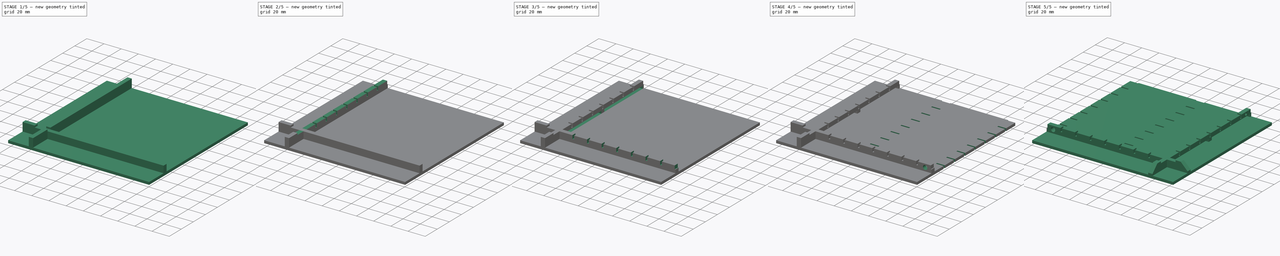
[diagram: build sequence overview — one tinted view per stage of 5, left to right]
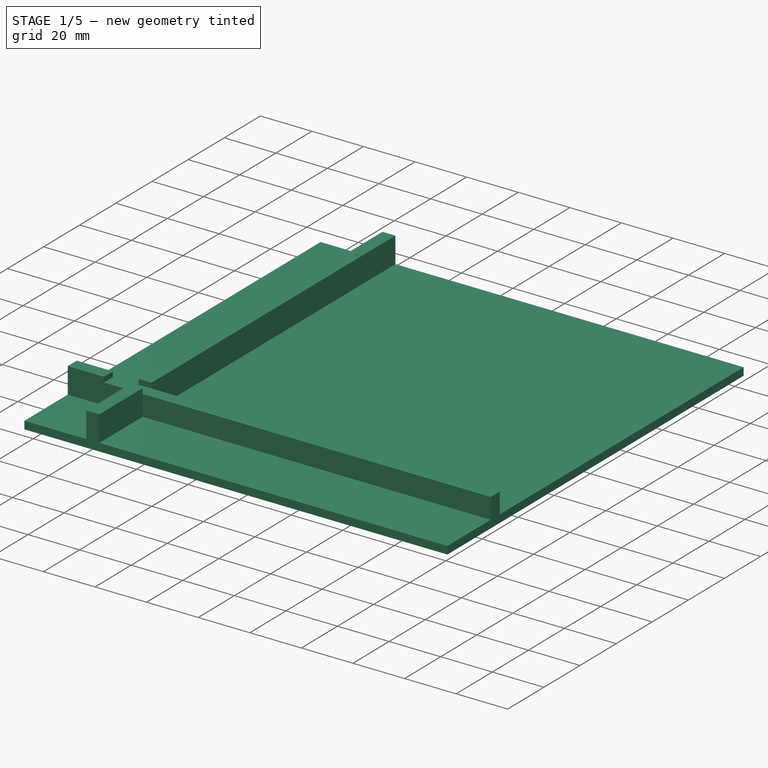
[diagram: stage 1 of 5 — iso view after this stage's code; geometry added in this stage tinted green]
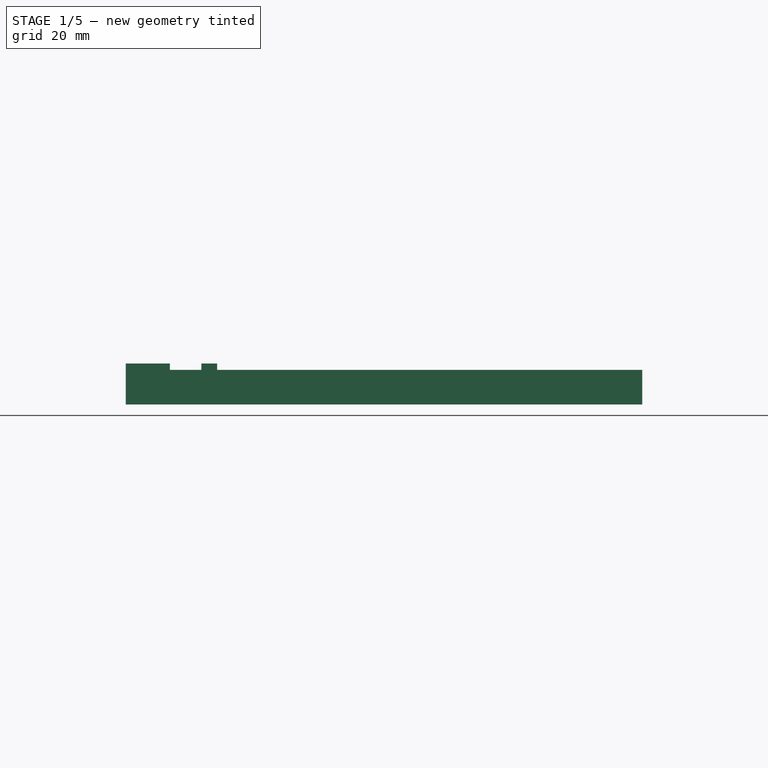
[diagram: stage 1 of 5 — front view after this stage's code; geometry added in this stage tinted green]
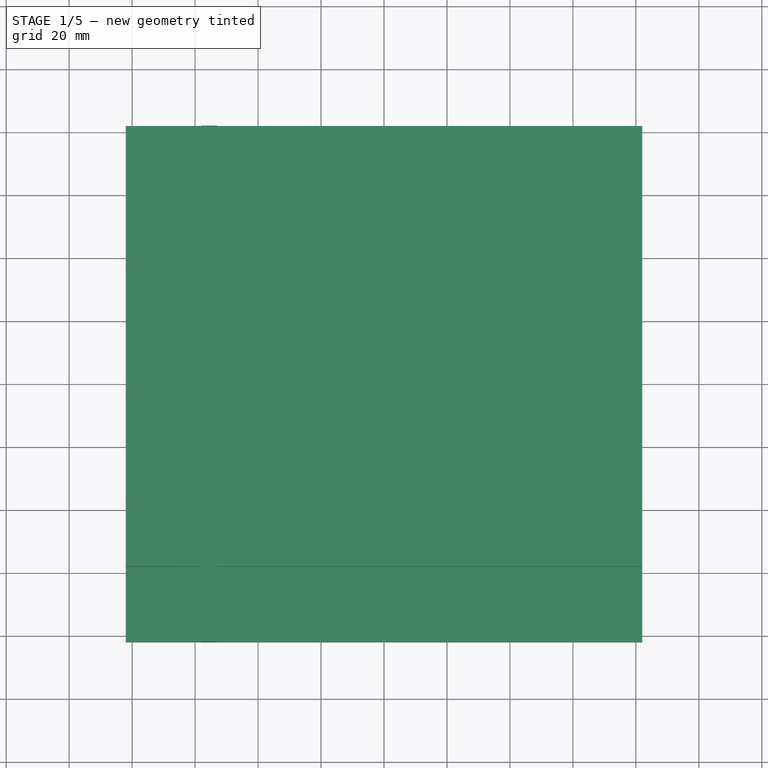
[diagram: stage 1 of 5 — top view after this stage's code; geometry added in this stage tinted green]
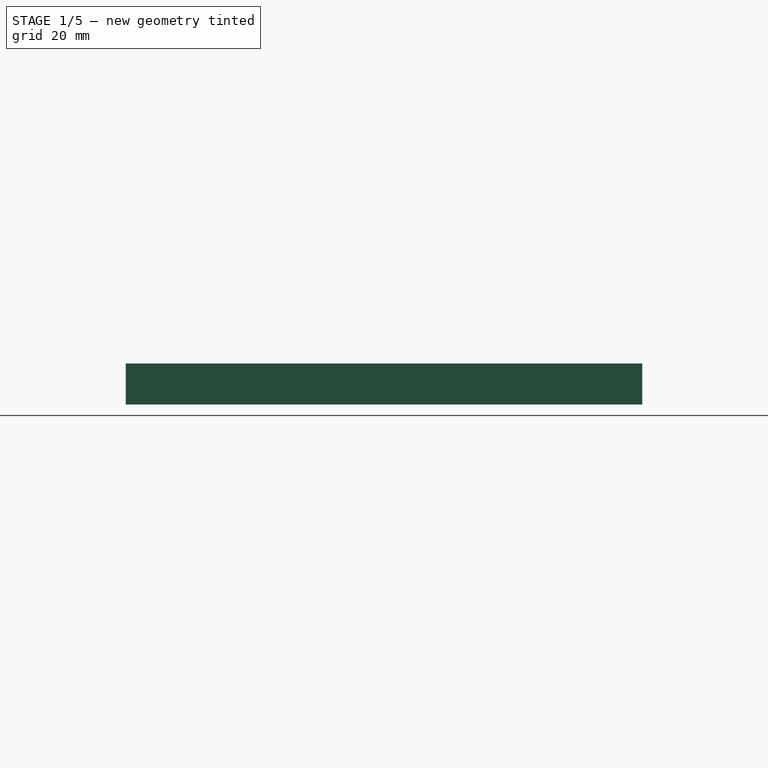
[diagram: stage 1 of 5 — right view after this stage's code; geometry added in this stage tinted green]
FCSTD DOCUMENT  (FreeCAD 2024.317R38972 (Git))
Label: frame_plate_left_bottom_rt_flat
License: All rights reserved
LicenseURL: http://en.wikipedia.org/wiki/All_rights_reserved
objects: Sketcher::SketchObject×10, PartDesign::Pocket×8, PartDesign::LinearPattern×4, PartDesign::Pad×2, PartDesign::MultiTransform×1, PartDesign::Chamfer×1, PartDesign::Body×1, Part::Mirroring×1
note: 70 computed .brp shape members not serialized (recipe doc carries the construction recipe); baked Part::Feature solids carry a one-line shape summary decoded from their .brp

FEATURE [Sketcher::SketchObject] Sketch  label="LB-plate"
  ArcFitTolerance = 0
  AttachmentSupport = -> [XY_Plane]
  ExternalBSplineMaxDegree = 0
  ExternalBSplineTolerance = 0
  FullyConstrained = true
  InternalTolerance = 1e-06
  InvalidShape = false
  MakeInternals = false
  MapMode = 5
  Support = -> [XY_Plane]
  TreeRank = 0
  ValidateShape = false
  sketch-geometry (4):
    g0: LineSegment StartX=-82 StartY=82 StartZ=0 EndX=82 EndY=82 EndZ=0
    g1: LineSegment StartX=82 StartY=82 StartZ=0 EndX=82 EndY=-82 EndZ=0
    g2: LineSegment StartX=82 StartY=-82 StartZ=0 EndX=-82 EndY=-82 EndZ=0
    g3: LineSegment StartX=-82 StartY=-82 StartZ=0 EndX=-82 EndY=82 EndZ=0
  constraints (10):
    c: Coincident(g0,g1)
    c: Coincident(g1,g2)
    c: Coincident(g2,g3)
    c: Coincident(g3,g0)
    c: Horizontal(g2)
    c: Vertical(g3)
    c: DistanceX(g2,g1) = 164
    c: DistanceY(g2,g0) = 164
    c: Symmetric(g1,g0,g-1)
    c: Symmetric(g0,g0,g-2)
FEATURE [PartDesign::Pad] Pad
  AddSubType = 0
  AlongSketchNormal = false
  AutoTaperInnerAngle = true
  CheckUpToFaceLimits = true
  ClaimChildren = false
  Direction = (0,0,1)
  Fit = 0
  FitJoin = 0
  InnerFit = 0
  InnerFitJoin = 0
  InvalidShape = false
  Length = 3
  Length2 = 10
  NewSolid = false
  Profile = -> Sketch
  ReferenceAxis = -> Sketch [N_Axis]
  Suppress = false
  TaperInnerAngle = 0
  TaperInnerAngleRev = 0
  TreeRank = 0
  Type = 0
  ValidateShape = true
  _ProfileBasedVersion = 0
FEATURE [Sketcher::SketchObject] Sketch001  label="LB-bounds"
  ArcFitTolerance = 0
  AttachmentSupport = -> [Pad]
  ExternalBSplineMaxDegree = 0
  ExternalBSplineTolerance = 0
  FullyConstrained = true
  InternalTolerance = 1e-06
  InvalidShape = false
  MakeInternals = false
  MapMode = 5
  Placement = pos=(0,0,3) rot=(0,0,1;0rad)
  Support = -> [Pad]
  TreeRank = 0
  ValidateShape = false
  sketch-geometry (8):
    g0: LineSegment StartX=-82 StartY=-53 StartZ=0 EndX=82 EndY=-53 EndZ=0
    g1: LineSegment StartX=82 StartY=-53 StartZ=0 EndX=82 EndY=-58 EndZ=0
    g2: LineSegment StartX=82 StartY=-58 StartZ=0 EndX=-82 EndY=-58 EndZ=0
    g3: LineSegment StartX=-82 StartY=-58 StartZ=0 EndX=-82 EndY=-53 EndZ=0
    g4: LineSegment StartX=-53 StartY=82 StartZ=0 EndX=-58 EndY=82 EndZ=0
    g5: LineSegment StartX=-58 StartY=82 StartZ=0 EndX=-58 EndY=-82 EndZ=0
    g6: LineSegment StartX=-58 StartY=-82 StartZ=0 EndX=-53 EndY=-82 EndZ=0
    g7: LineSegment StartX=-53 StartY=-82 StartZ=0 EndX=-53 EndY=82 EndZ=0
  constraints (24):
    c: Coincident(g0,g1)
    c: Coincident(g1,g2)
    c: Coincident(g2,g3)
    c: Coincident(g3,g0)
    c: Horizontal(g0)
    c: Horizontal(g2)
    c: Vertical(g1)
    c: Vertical(g3)
    c: DistanceY(g2,g0) = 5
    c: Coincident(g4,g5)
    c: Coincident(g5,g6)
    c: Coincident(g6,g7)
    c: Coincident(g7,g4)
    c: Horizontal(g4)
    c: Horizontal(g6)
    c: Vertical(g5)
    c: Vertical(g7)
    c: DistanceX(g5,g6) = 5
    c: DistanceX(g2,g6) = 29
    c: DistanceY(g5,g0) = 29
    c: DistanceY(g0,g-1) = 53
    c: DistanceX(g6,g-1) = 53
    c: DistanceX(g2,g1) = 164
    c: DistanceY(g5,g4) = 164
FEATURE [PartDesign::Pad] Pad001
  AddSubType = 0
  AutoTaperInnerAngle = true
  BaseFeature = -> Pad
  CheckUpToFaceLimits = true
  ClaimChildren = false
  Direction = (0,0,1)
  Fit = 0
  FitJoin = 0
  InnerFit = 0
  InnerFitJoin = 0
  InvalidShape = false
  Length = 10
  Length2 = 10
  NewSolid = false
  Profile = -> Sketch001
  ReferenceAxis = -> Sketch001 [N_Axis]
  Suppress = false
  TaperInnerAngle = 0
  TaperInnerAngleRev = 0
  TreeRank = 0
  Type = 0
  ValidateShape = true
  _ProfileBasedVersion = 0
FEATURE [Sketcher::SketchObject] Sketch005  label="LB-H-plex-cutout"
  ArcFitTolerance = 0
  ExternalBSplineMaxDegree = 0
  ExternalBSplineTolerance = 0
  ExternalGeometry = -> [Pad001]
  FullyConstrained = true
  InternalTolerance = 1e-06
  InvalidShape = false
  MakeInternals = false
  MapMode = 5
  Placement = pos=(0,-53,0) rot=(0,0.707107,0.707107;3.14159rad)
  TreeRank = 0
  ValidateShape = false
  sketch-geometry (4):
    g0: LineSegment StartX=-82 StartY=13 StartZ=0 EndX=68 EndY=13 EndZ=0
    g1: LineSegment StartX=68 StartY=13 StartZ=0 EndX=68 EndY=11 EndZ=0
    g2: LineSegment StartX=68 StartY=11 StartZ=0 EndX=-82 EndY=11 EndZ=0
    g3: LineSegment StartX=-82 StartY=11 StartZ=0 EndX=-82 EndY=13 EndZ=0
  constraints (12):
    c: Coincident(g0,g1)
    c: Coincident(g1,g2)
    c: Coincident(g2,g3)
    c: Coincident(g3,g0)
    c: Horizontal(g0)
    c: Horizontal(g2)
    c: Vertical(g1)
    c: Vertical(g3)
    c: DistanceY(g1,g0) = 2
    c: DistanceX(g1,g-3) = 14
    c: PointOnObject(g2,g-5)
    c: PointOnObject(g0,g-6)
FEATURE [PartDesign::Pocket] Pocket
  AddSubType = 1
  AlongSketchNormal = false
  AutoTaperInnerAngle = true
  BaseFeature = -> Pad001
  CheckUpToFaceLimits = true
  ClaimChildren = false
  Direction = (-1e-16,-1,2e-16)
  Fit = 0
  FitJoin = 0
  InnerFit = 0
  InnerFitJoin = 0
  InvalidShape = false
  Length = 5
  Length2 = 10
  Linearize = true
  NewSolid = false
  Profile = -> Sketch005
  ReferenceAxis = -> Sketch005 [N_Axis]
  Suppress = false
  TaperInnerAngle = 0
  TaperInnerAngleRev = 0
  TreeRank = 1
  Type = 0
  ValidateShape = true
  _ProfileBasedVersion = 1
  _Version = 1
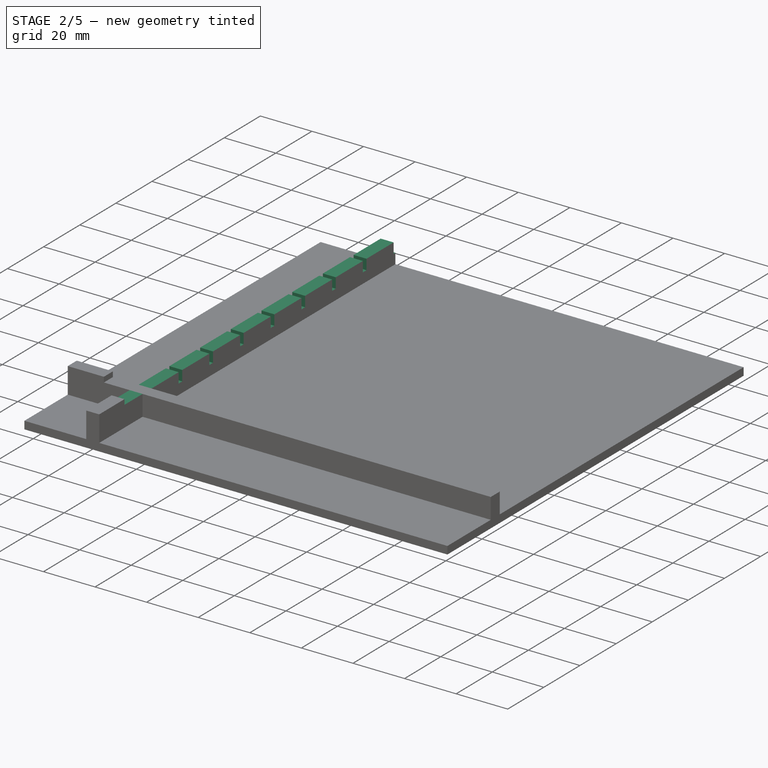
[diagram: stage 2 of 5 — iso view after this stage's code; geometry added in this stage tinted green]
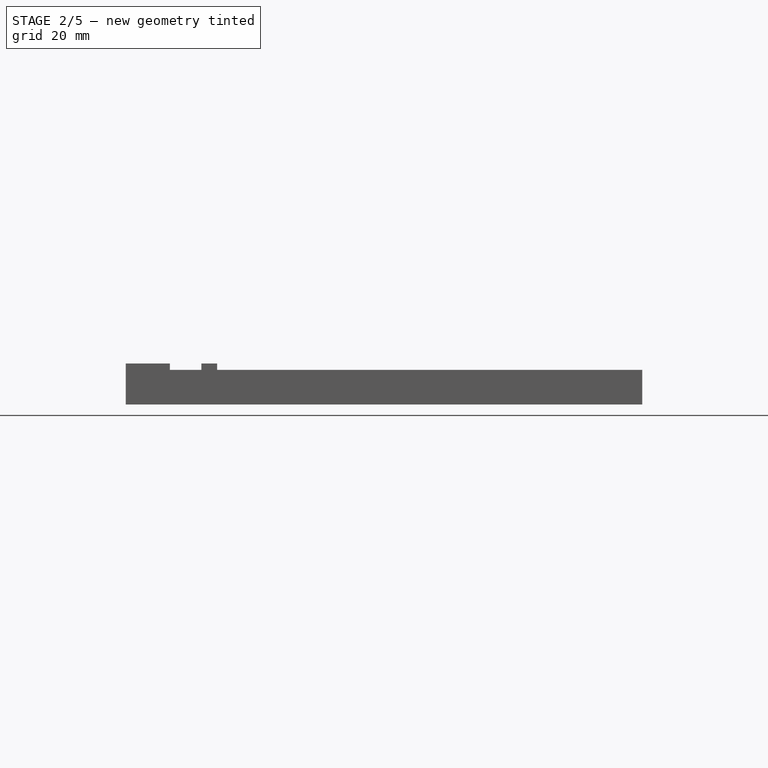
[diagram: stage 2 of 5 — front view after this stage's code; geometry added in this stage tinted green]
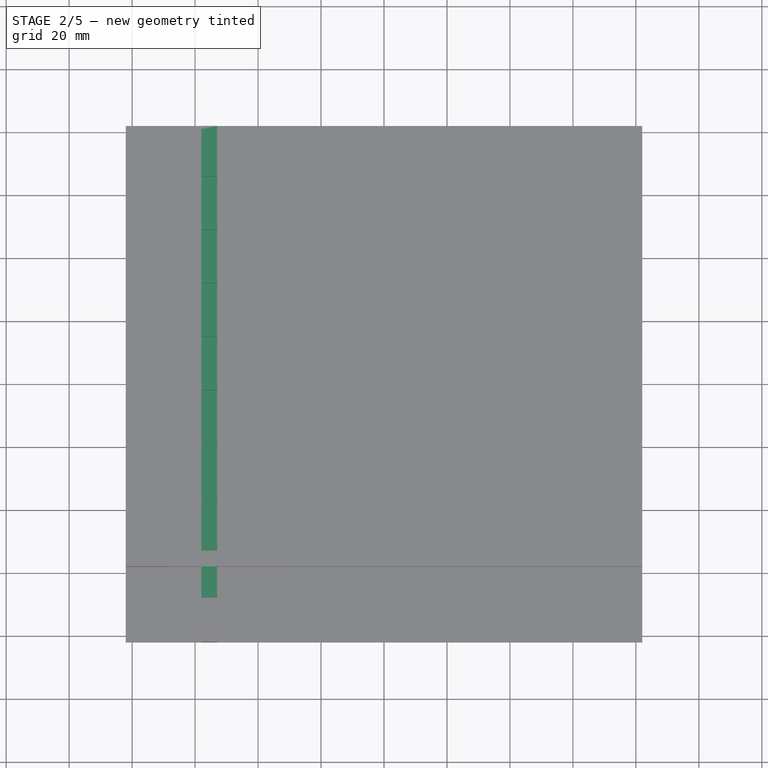
[diagram: stage 2 of 5 — top view after this stage's code; geometry added in this stage tinted green]
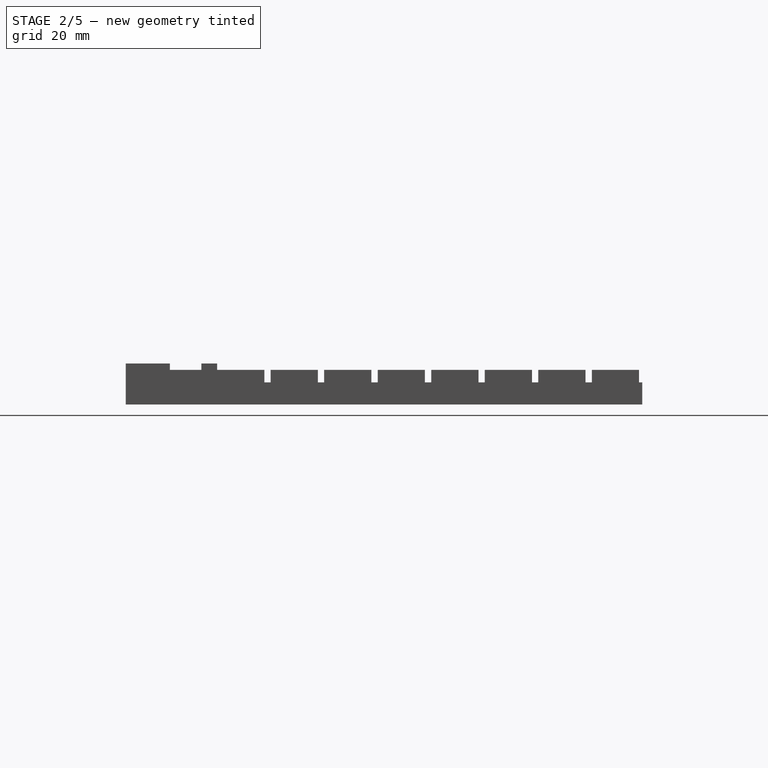
[diagram: stage 2 of 5 — right view after this stage's code; geometry added in this stage tinted green]
FEATURE [Sketcher::SketchObject] Sketch006  label="LB-V-plex-cutout"
  ArcFitTolerance = 1e-06
  AttachmentSupport = -> [Pocket]
  ExternalBSplineMaxDegree = 5
  ExternalBSplineTolerance = 0.0001
  ExternalGeometry = -> [Pocket]
  FullyConstrained = true
  InternalTolerance = 1e-06
  InvalidShape = false
  MakeInternals = false
  MapMode = 5
  Placement = pos=(-53,0,0) rot=(0.57735,0.57735,0.57735;2.0944rad)
  Support = -> [Pocket]
  TreeRank = 2
  ValidateShape = false
  sketch-geometry (4):
    g0: LineSegment StartX=-68 StartY=13 StartZ=0 EndX=82 EndY=13 EndZ=0
    g1: LineSegment StartX=82 StartY=13 StartZ=0 EndX=82 EndY=11 EndZ=0
    g2: LineSegment StartX=82 StartY=11 StartZ=0 EndX=-68 EndY=11 EndZ=0
    g3: LineSegment StartX=-68 StartY=11 StartZ=0 EndX=-68 EndY=13 EndZ=0
  constraints (11):
    c: Coincident(g0,g1)
    c: Coincident(g1,g2)
    c: Coincident(g2,g3)
    c: Coincident(g3,g0)
    c: Horizontal(g0)
    c: Horizontal(g2)
    c: Vertical(g1)
    c: Vertical(g3)
    c: DistanceY(g2,g0) = 2
    c: Coincident(g0,g-3)
    c: DistanceX(g-4,g0) = 14
FEATURE [PartDesign::Pocket] Pocket001
  AddSubType = 1
  AlongSketchNormal = false
  AutoTaperInnerAngle = true
  BaseFeature = -> Pocket
  CheckUpToFaceLimits = true
  ClaimChildren = false
  Direction = (-1,0,0)
  Fit = 0
  FitJoin = 0
  InnerFit = 0
  InnerFitJoin = 0
  InvalidShape = false
  Length = 5
  Length2 = 10
  Linearize = true
  NewSolid = false
  Profile = -> Sketch006
  ReferenceAxis = -> Sketch006 [N_Axis]
  Suppress = false
  TaperInnerAngle = 0
  TaperInnerAngleRev = 0
  TreeRank = 3
  Type = 0
  ValidateShape = true
  _ProfileBasedVersion = 1
  _Version = 1
FEATURE [Sketcher::SketchObject] Sketch007  label="LB-V-crisscross-cutout"
  ArcFitTolerance = 1e-06
  AttachmentSupport = -> [Pocket001]
  ExternalBSplineMaxDegree = 5
  ExternalBSplineTolerance = 0.0001
  ExternalGeometry = -> [Pocket001]
  FullyConstrained = true
  InternalTolerance = 1e-06
  InvalidShape = false
  MakeInternals = false
  MapMode = 5
  Placement = pos=(-53,0,0) rot=(0.57735,0.57735,0.57735;2.0944rad)
  Support = -> [Pocket001]
  TreeRank = 4
  ValidateShape = false
  sketch-geometry (4):
    g0: LineSegment StartX=-38 StartY=11 StartZ=0 EndX=-36 EndY=11 EndZ=0
    g1: LineSegment StartX=-36 StartY=11 StartZ=0 EndX=-36 EndY=7 EndZ=0
    g2: LineSegment StartX=-36 StartY=7 StartZ=0 EndX=-38 EndY=7 EndZ=0
    g3: LineSegment StartX=-38 StartY=7 StartZ=0 EndX=-38 EndY=11 EndZ=0
  constraints (12):
    c: Coincident(g0,g1)
    c: Coincident(g1,g2)
    c: Coincident(g2,g3)
    c: Coincident(g3,g0)
    c: Horizontal(g0)
    c: Horizontal(g2)
    c: Vertical(g1)
    c: Vertical(g3)
    c: DistanceX(g0,g0) = 2
    c: DistanceY(g2,g0) = 4
    c: DistanceX(g-3,g0) = 15
    c: PointOnObject(g0,g-4)
FEATURE [PartDesign::Pocket] Pocket002
  AddSubType = 1
  AlongSketchNormal = false
  AutoTaperInnerAngle = true
  BaseFeature = -> Pocket001
  CheckUpToFaceLimits = true
  ClaimChildren = false
  Direction = (-1,0,0)
  Fit = 0
  FitJoin = 0
  InnerFit = 0
  InnerFitJoin = 0
  InvalidShape = false
  Length = 5
  Length2 = 10
  Linearize = true
  NewSolid = false
  Profile = -> Sketch007
  ReferenceAxis = -> Sketch007 [N_Axis]
  Suppress = false
  TaperInnerAngle = 0
  TaperInnerAngleRev = 0
  TreeRank = 5
  Type = 0
  ValidateShape = true
  _ProfileBasedVersion = 1
  _Version = 1
FEATURE [PartDesign::LinearPattern] LinearPattern
  AddSubType = 0
  BaseFeature = -> Pocket002
  CopyShape = false
  Direction = -> Y_Axis
  InvalidShape = false
  Length = 136
  NewSolid = false
  Occurrences = 9
  OriginalSubs = -> [Pocket002]
  Originals = -> [Pocket002]
  ParallelTransform = true
  SubTransform = true
  Suppress = false
  TreeRank = 6
  ValidateShape = true
  _Version = 3
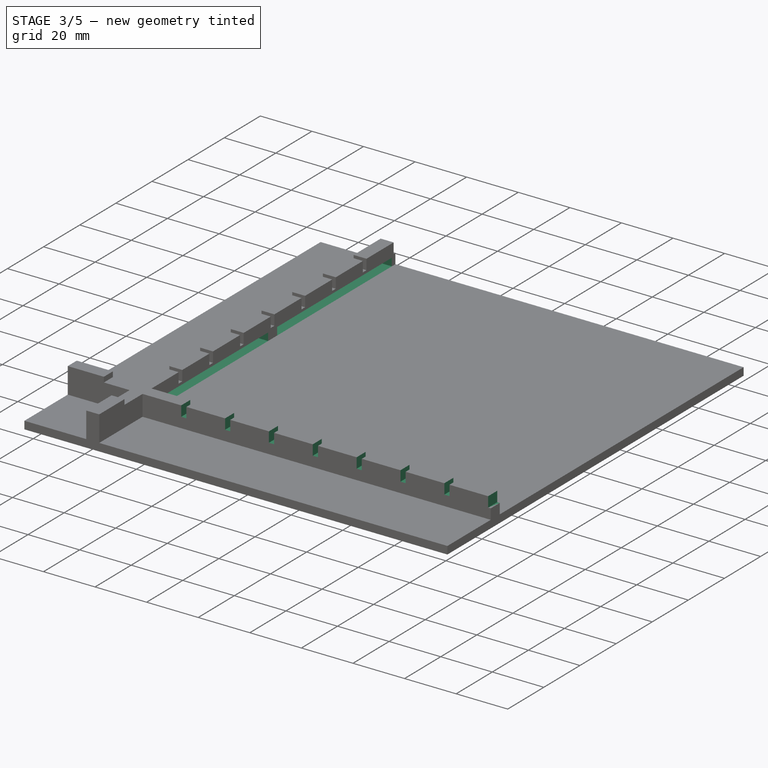
[diagram: stage 3 of 5 — iso view after this stage's code; geometry added in this stage tinted green]
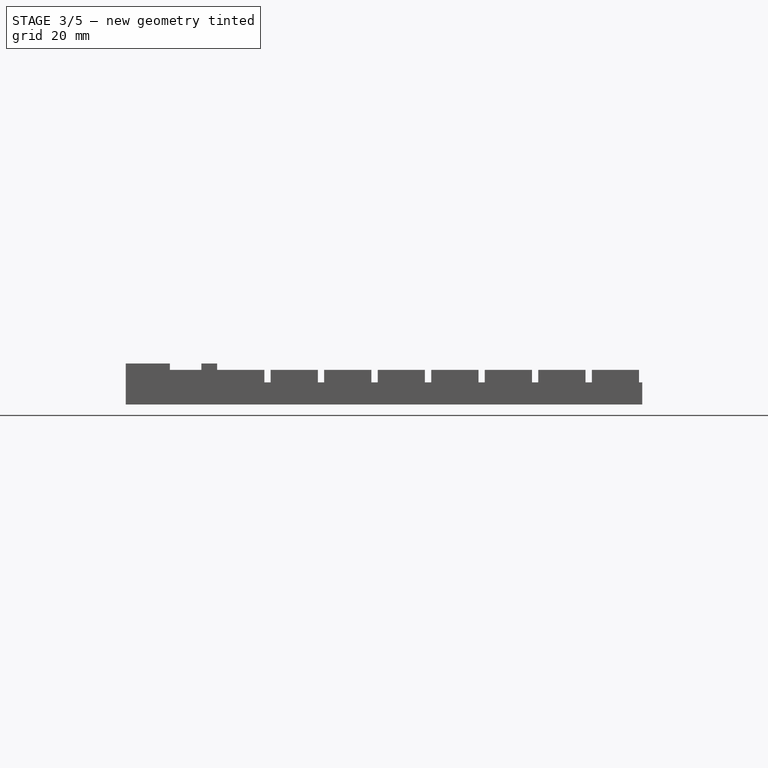
[diagram: stage 3 of 5 — front view after this stage's code; geometry added in this stage tinted green]
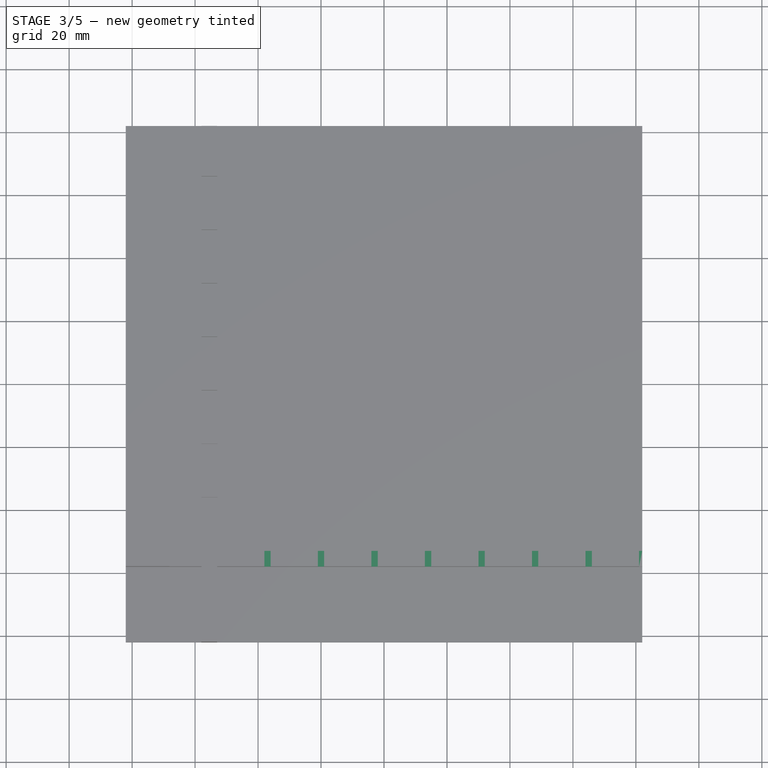
[diagram: stage 3 of 5 — top view after this stage's code; geometry added in this stage tinted green]
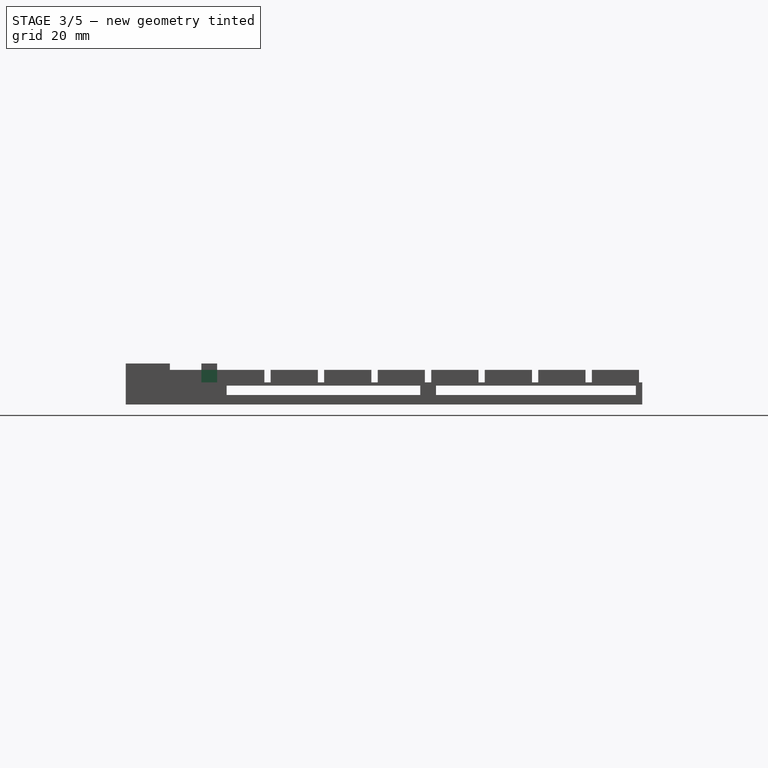
[diagram: stage 3 of 5 — right view after this stage's code; geometry added in this stage tinted green]
FEATURE [Sketcher::SketchObject] Sketch008  label="LB-V-cable-cutout"
  ArcFitTolerance = 1e-06
  AttachmentSupport = -> [LinearPattern]
  ExternalBSplineMaxDegree = 5
  ExternalBSplineTolerance = 0.0001
  ExternalGeometry = -> [LinearPattern]
  FullyConstrained = true
  InternalTolerance = 1e-06
  InvalidShape = false
  MakeInternals = false
  MapMode = 5
  Placement = pos=(-53,0,0) rot=(0.57735,0.57735,0.57735;2.0944rad)
  Support = -> [LinearPattern]
  TreeRank = 7
  ValidateShape = false
  sketch-geometry (8):
    g0: LineSegment StartX=-50 StartY=6 StartZ=0 EndX=11.5 EndY=6 EndZ=0
    g1: LineSegment StartX=11.5 StartY=6 StartZ=0 EndX=11.5 EndY=3 EndZ=0
    g2: LineSegment StartX=11.5 StartY=3 StartZ=0 EndX=-50 EndY=3 EndZ=0
    g3: LineSegment StartX=-50 StartY=3 StartZ=0 EndX=-50 EndY=6 EndZ=0
    g4: LineSegment StartX=16.5 StartY=6 StartZ=0 EndX=80 EndY=6 EndZ=0
    g5: LineSegment StartX=80 StartY=6 StartZ=0 EndX=80 EndY=3 EndZ=0
    g6: LineSegment StartX=80 StartY=3 StartZ=0 EndX=16.5 EndY=3 EndZ=0
    g7: LineSegment StartX=16.5 StartY=3 StartZ=0 EndX=16.5 EndY=6 EndZ=0
  constraints (24):
    c: Coincident(g0,g1)
    c: Coincident(g1,g2)
    c: Coincident(g2,g3)
    c: Coincident(g3,g0)
    c: Horizontal(g0)
    c: Horizontal(g2)
    c: Vertical(g1)
    c: Vertical(g3)
    c: Coincident(g4,g5)
    c: Coincident(g5,g6)
    c: Coincident(g6,g7)
    c: Coincident(g7,g4)
    c: Horizontal(g4)
    c: Horizontal(g6)
    c: Vertical(g5)
    c: Vertical(g7)
    c: DistanceY(g5,g4) = 3
    c: DistanceY(g1,g0) = 3
    c: DistanceX(g5,g-3) = 2
    c: DistanceX(g-4,g2) = 3
    c: DistanceX(g-6,g4) = 1.5
    c: DistanceX(g0,g-5) = 1.5
    c: PointOnObject(g6,g-7)
    c: PointOnObject(g1,g-7)
FEATURE [PartDesign::Pocket] Pocket003
  AddSubType = 1
  AlongSketchNormal = false
  AutoTaperInnerAngle = true
  BaseFeature = -> LinearPattern
  CheckUpToFaceLimits = true
  ClaimChildren = false
  Direction = (-1,0,0)
  Fit = 0
  FitJoin = 0
  InnerFit = 0
  InnerFitJoin = 0
  InvalidShape = false
  Length = 5
  Length2 = 10
  Linearize = true
  NewSolid = false
  Profile = -> Sketch008
  ReferenceAxis = -> Sketch008 [N_Axis]
  Suppress = false
  TaperInnerAngle = 0
  TaperInnerAngleRev = 0
  TreeRank = 8
  Type = 0
  ValidateShape = true
  _ProfileBasedVersion = 1
  _Version = 1
FEATURE [Sketcher::SketchObject] Sketch009  label="LB-H-crisscross-cutout"
  ArcFitTolerance = 1e-06
  AttachmentSupport = -> [Pocket003]
  ExternalBSplineMaxDegree = 5
  ExternalBSplineTolerance = 0.0001
  ExternalGeometry = -> [Pocket003]
  FullyConstrained = true
  InternalTolerance = 1e-06
  InvalidShape = false
  MakeInternals = false
  MapMode = 5
  Placement = pos=(0,-53,0) rot=(0,0.707107,0.707107;3.14159rad)
  Support = -> [Pocket003]
  TreeRank = 9
  ValidateShape = false
  sketch-geometry (4):
    g0: LineSegment StartX=36 StartY=11 StartZ=0 EndX=38 EndY=11 EndZ=0
    g1: LineSegment StartX=38 StartY=11 StartZ=0 EndX=38 EndY=7 EndZ=0
    g2: LineSegment StartX=38 StartY=7 StartZ=0 EndX=36 EndY=7 EndZ=0
    g3: LineSegment StartX=36 StartY=7 StartZ=0 EndX=36 EndY=11 EndZ=0
  constraints (12):
    c: Coincident(g0,g1)
    c: Coincident(g1,g2)
    c: Coincident(g2,g3)
    c: Coincident(g3,g0)
    c: Horizontal(g0)
    c: Horizontal(g2)
    c: Vertical(g1)
    c: Vertical(g3)
    c: DistanceY(g1,g0) = 4
    c: DistanceX(g0,g0) = 2
    c: PointOnObject(g0,g-4)
    c: DistanceX(g0,g-4) = 15
FEATURE [PartDesign::Pocket] Pocket004
  AddSubType = 1
  AlongSketchNormal = false
  AutoTaperInnerAngle = true
  BaseFeature = -> Pocket003
  CheckUpToFaceLimits = true
  ClaimChildren = false
  Direction = (0,-1,2e-16)
  Fit = 0
  FitJoin = 0
  InnerFit = 0
  InnerFitJoin = 0
  InvalidShape = false
  Length = 5
  Length2 = 10
  Linearize = true
  NewSolid = false
  Profile = -> Sketch009
  ReferenceAxis = -> Sketch009 [N_Axis]
  Suppress = false
  TaperInnerAngle = 0
  TaperInnerAngleRev = 0
  TreeRank = 10
  Type = 0
  ValidateShape = true
  _ProfileBasedVersion = 1
  _Version = 1
FEATURE [PartDesign::LinearPattern] LinearPattern001
  AddSubType = 0
  BaseFeature = -> Pocket004
  CopyShape = false
  Direction = -> Sketch009 [H_Axis]
  InvalidShape = false
  Length = 136
  NewSolid = false
  Occurrences = 9
  OriginalSubs = -> [Pocket004]
  Originals = -> [Pocket004]
  ParallelTransform = true
  Reversed = true
  SubTransform = true
  Suppress = false
  TreeRank = 11
  ValidateShape = true
  _Version = 3
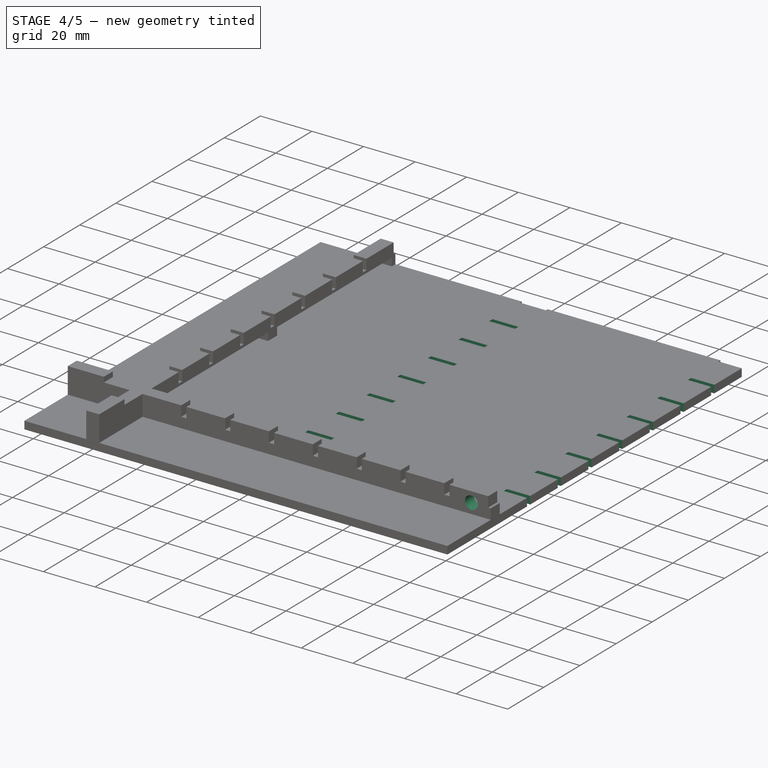
[diagram: stage 4 of 5 — iso view after this stage's code; geometry added in this stage tinted green]
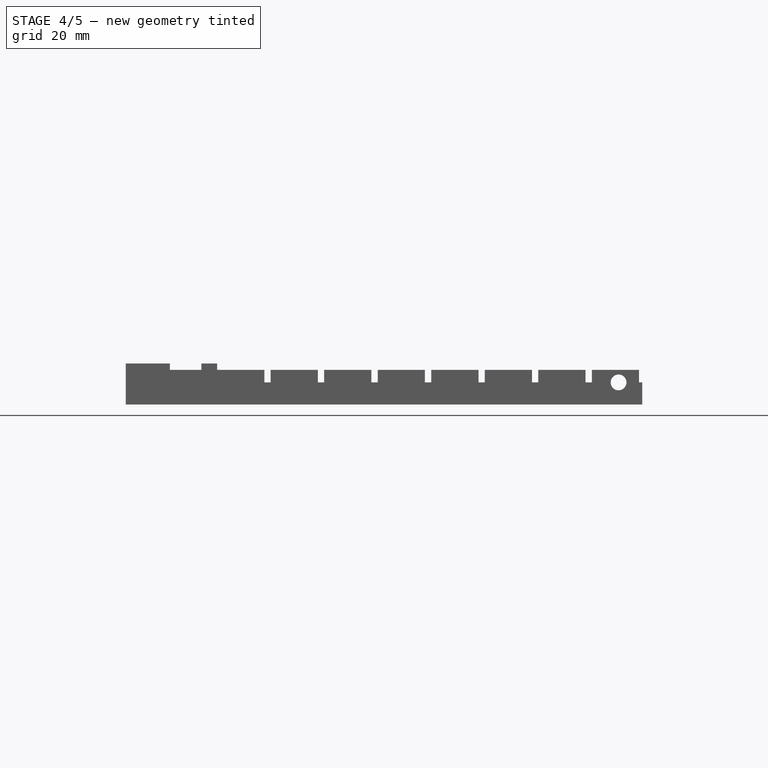
[diagram: stage 4 of 5 — front view after this stage's code; geometry added in this stage tinted green]
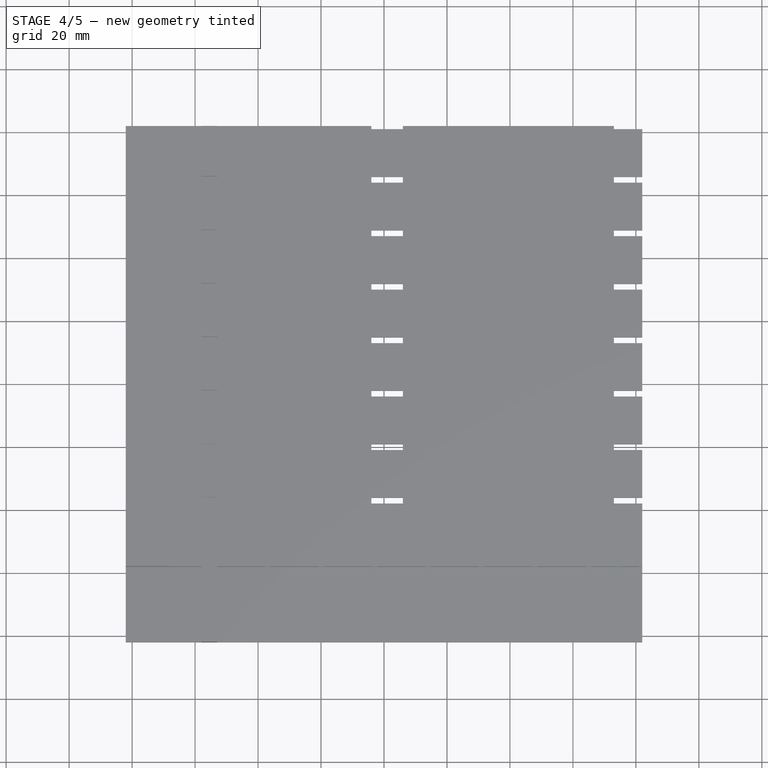
[diagram: stage 4 of 5 — top view after this stage's code; geometry added in this stage tinted green]
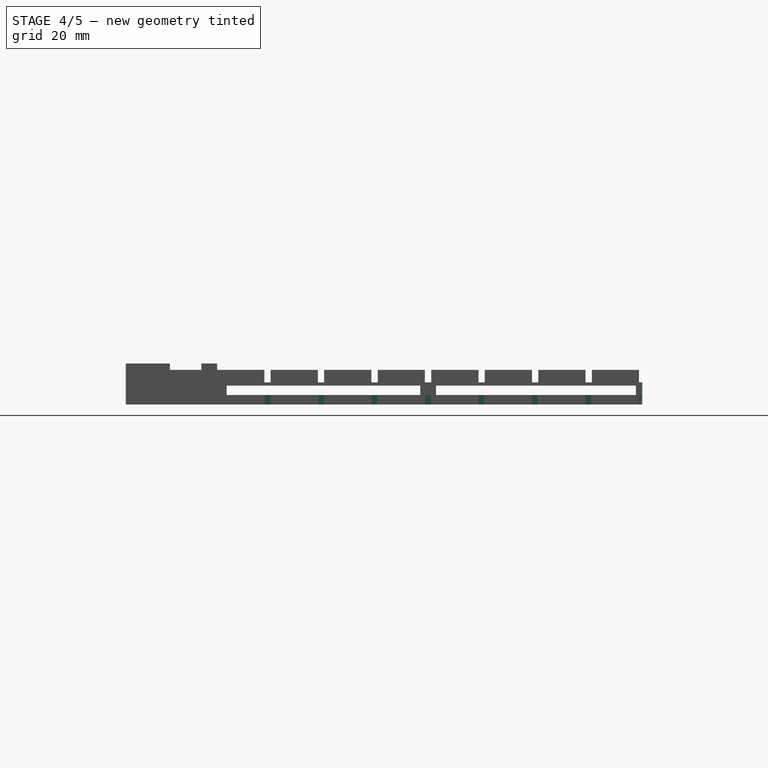
[diagram: stage 4 of 5 — right view after this stage's code; geometry added in this stage tinted green]
FEATURE [Sketcher::SketchObject] Sketch010  label="crisscross-cutout-template"
  ArcFitTolerance = 1e-06
  AttachmentSupport = -> [Pocket004]
  ExternalBSplineMaxDegree = 5
  ExternalBSplineTolerance = 0.0001
  ExternalGeometry = -> [Pocket004]
  FullyConstrained = true
  InternalTolerance = 1e-06
  InvalidShape = false
  MakeInternals = false
  MapMode = 5
  Placement = pos=(0,0,3) rot=(0,0,1;0rad)
  Support = -> [Pocket004]
  TreeRank = 12
  ValidateShape = false
  sketch-geometry (4):
    g0: LineSegment StartX=-4 StartY=-36.1 StartZ=0 EndX=6 EndY=-36.1 EndZ=0
    g1: LineSegment StartX=6 StartY=-36.1 StartZ=0 EndX=6 EndY=-37.9 EndZ=0
    g2: LineSegment StartX=6 StartY=-37.9 StartZ=0 EndX=-4 EndY=-37.9 EndZ=0
    g3: LineSegment StartX=-4 StartY=-37.9 StartZ=0 EndX=-4 EndY=-36.1 EndZ=0
  constraints (12):
    c: Coincident(g0,g1)
    c: Coincident(g1,g2)
    c: Coincident(g2,g3)
    c: Coincident(g3,g0)
    c: Horizontal(g0)
    c: Horizontal(g2)
    c: Vertical(g1)
    c: Vertical(g3)
    c: DistanceX(g0,g0) = 10
    c: DistanceY(g2,g0) = 1.8
    c: DistanceX(g-3,g0) = 49
    c: DistanceY(g0,g-3) = 0.1
FEATURE [PartDesign::Pocket] Pocket005
  AddSubType = 1
  AlongSketchNormal = false
  AutoTaperInnerAngle = true
  BaseFeature = -> LinearPattern001
  CheckUpToFaceLimits = true
  ClaimChildren = false
  Direction = (0,0,-1)
  Fit = 0
  FitJoin = 0
  InnerFit = 0
  InnerFitJoin = 0
  InvalidShape = false
  Length = 5
  Length2 = 10
  Linearize = true
  NewSolid = false
  Profile = -> Sketch010
  ReferenceAxis = -> Sketch010 [N_Axis]
  Suppress = false
  TaperInnerAngle = 0
  TaperInnerAngleRev = 0
  TreeRank = 13
  Type = 0
  ValidateShape = true
  _ProfileBasedVersion = 1
  _Version = 1
FEATURE [PartDesign::LinearPattern] LinearPattern002
  AddSubType = 0
  CopyShape = false
  Direction = -> Y_Axis
  InvalidShape = false
  Length = 135.9
  NewSolid = false
  Occurrences = 9
  ParallelTransform = true
  SubTransform = true
  Suppress = false
  TreeRank = 15
  ValidateShape = true
  _Version = 3
FEATURE [PartDesign::LinearPattern] LinearPattern003
  AddSubType = 0
  CopyShape = false
  Direction = -> X_Axis
  InvalidShape = false
  Length = 77
  NewSolid = false
  Occurrences = 2
  ParallelTransform = true
  SubTransform = true
  Suppress = false
  TreeRank = 16
  ValidateShape = true
  _Version = 3
FEATURE [PartDesign::MultiTransform] MultiTransform
  AddSubType = 0
  BaseFeature = -> Pocket005
  CopyShape = false
  InvalidShape = false
  NewSolid = false
  OriginalSubs = -> [Pocket005]
  Originals = -> [Pocket005]
  ParallelTransform = true
  SubTransform = true
  Suppress = false
  Transformations = -> [LinearPattern002,LinearPattern003]
  TreeRank = 14
  ValidateShape = true
  _Version = 3
FEATURE [Sketcher::SketchObject] Sketch011  label="LB-V-connector-hole-5"
  ArcFitTolerance = 1e-06
  AttachmentSupport = -> [MultiTransform]
  ExternalBSplineMaxDegree = 5
  ExternalBSplineTolerance = 0.0001
  ExternalGeometry = -> [MultiTransform]
  FullyConstrained = true
  InternalTolerance = 1e-06
  InvalidShape = false
  MakeInternals = false
  MapMode = 5
  Placement = pos=(0,-58,0) rot=(1,0,0;1.5708rad)
  Support = -> [MultiTransform]
  TreeRank = 17
  ValidateShape = false
  sketch-geometry (1):
    g0: Circle CenterX=74.5 CenterY=7 CenterZ=0 NormalX=0 NormalY=0 NormalZ=1 AngleXU=0 Radius=2.5
  constraints (3):
    c: Diameter(g0) = 5
    c: DistanceY(g0,g-3) = 4
    c: DistanceX(g0,g-5) = 7.5
FEATURE [PartDesign::Pocket] Pocket006
  AddSubType = 1
  AlongSketchNormal = false
  AutoTaperInnerAngle = true
  BaseFeature = -> MultiTransform
  CheckUpToFaceLimits = true
  ClaimChildren = false
  Direction = (0,1,-2e-16)
  Fit = 0
  FitJoin = 0
  InnerFit = 0
  InnerFitJoin = 0
  InvalidShape = false
  Length = 5
  Length2 = 10
  Linearize = true
  NewSolid = false
  Profile = -> Sketch011
  ReferenceAxis = -> Sketch011 [N_Axis]
  Suppress = false
  TaperInnerAngle = 0
  TaperInnerAngleRev = 0
  TreeRank = 18
  Type = 0
  ValidateShape = true
  _ProfileBasedVersion = 1
  _Version = 1
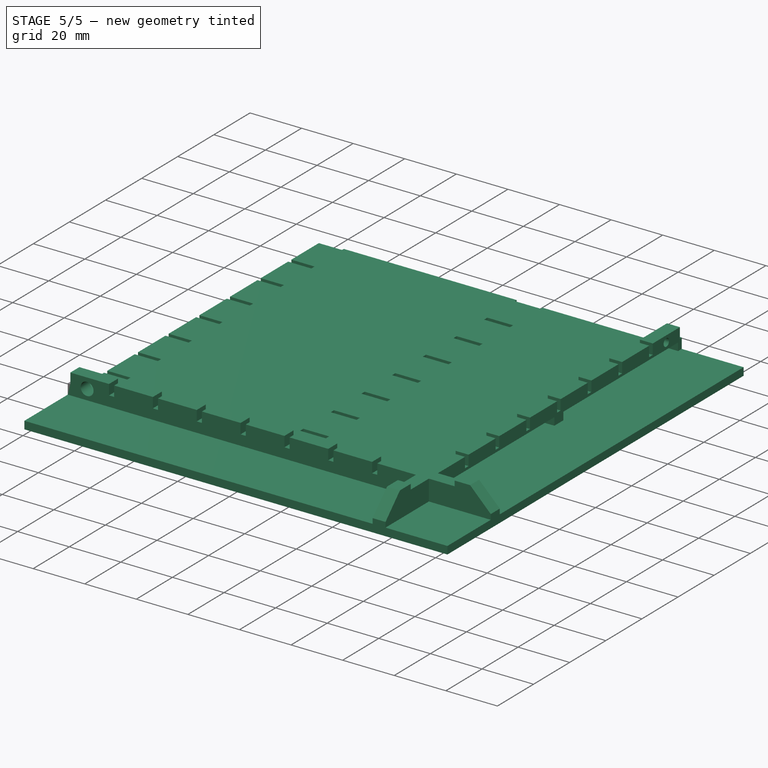
[diagram: stage 5 of 5 — iso view after this stage's code; geometry added in this stage tinted green]
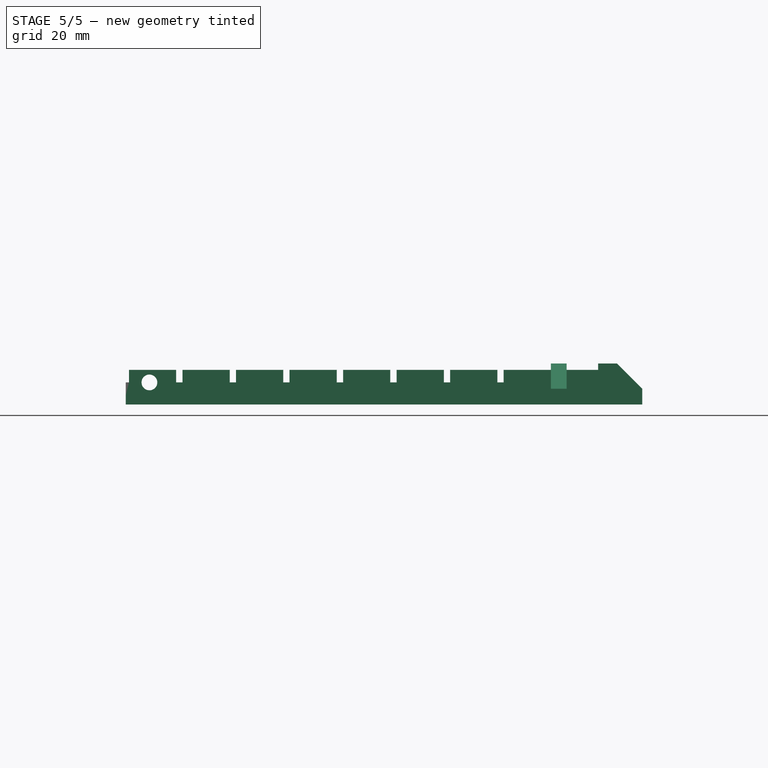
[diagram: stage 5 of 5 — front view after this stage's code; geometry added in this stage tinted green]
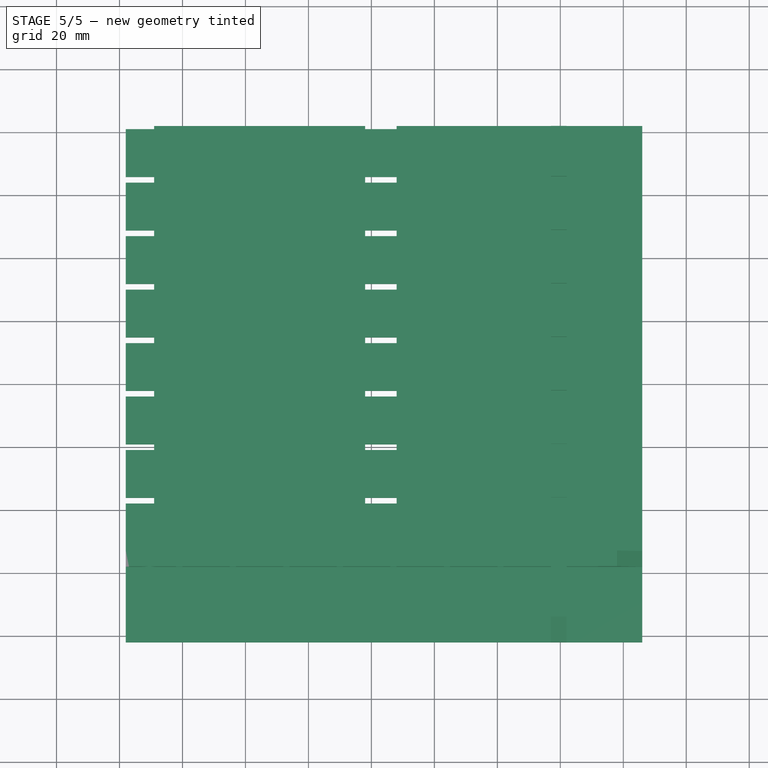
[diagram: stage 5 of 5 — top view after this stage's code; geometry added in this stage tinted green]
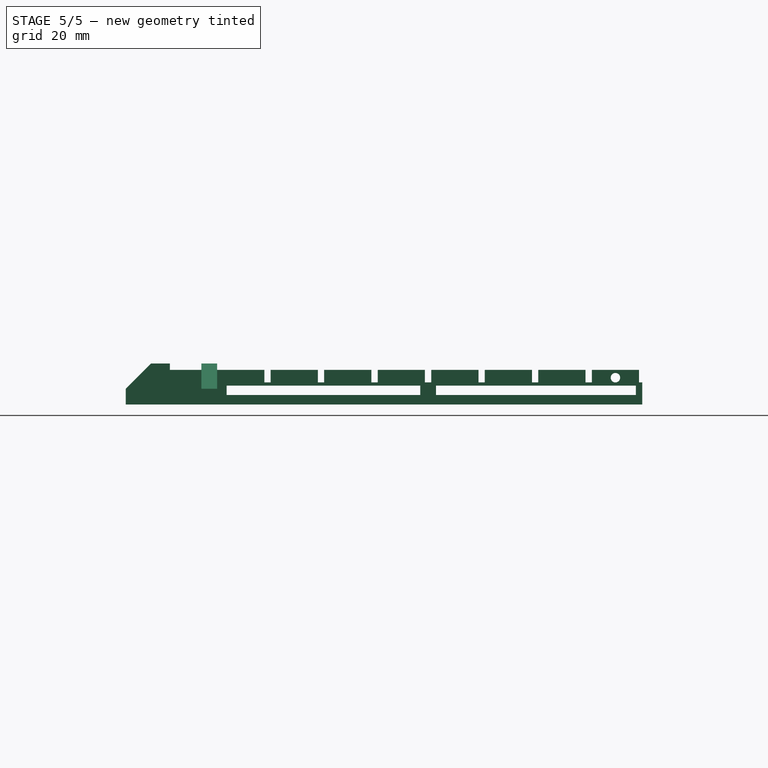
[diagram: stage 5 of 5 — right view after this stage's code; geometry added in this stage tinted green]
FEATURE [Sketcher::SketchObject] Sketch012  label="LB-H-connector-hole-3"
  ArcFitTolerance = 1e-06
  AttachmentSupport = -> [Pocket006]
  ExternalBSplineMaxDegree = 5
  ExternalBSplineTolerance = 0.0001
  ExternalGeometry = -> [Pocket006]
  FullyConstrained = true
  InternalTolerance = 1e-06
  InvalidShape = false
  MakeInternals = false
  MapMode = 5
  Placement = pos=(-58,0,0) rot=(0.57735,-0.57735,-0.57735;2.0944rad)
  Support = -> [Pocket006]
  TreeRank = 19
  ValidateShape = false
  sketch-geometry (1):
    g0: Circle CenterX=-73.5 CenterY=8.5 CenterZ=0 NormalX=0 NormalY=0 NormalZ=1 AngleXU=0 Radius=1.5
  constraints (3):
    c: DistanceX(g0,g-4) = 7.5
    c: Diameter(g0) = 3
    c: DistanceY(g0,g-5) = 2.5
FEATURE [PartDesign::Pocket] Pocket007
  AddSubType = 1
  AlongSketchNormal = false
  AutoTaperInnerAngle = true
  BaseFeature = -> Pocket006
  CheckUpToFaceLimits = true
  ClaimChildren = false
  Direction = (1,0,0)
  Fit = 0
  FitJoin = 0
  InnerFit = 0
  InnerFitJoin = 0
  InvalidShape = false
  Length = 5
  Length2 = 10
  Linearize = true
  NewSolid = false
  Profile = -> Sketch012
  ReferenceAxis = -> Sketch012 [N_Axis]
  Suppress = false
  TaperInnerAngle = 0
  TaperInnerAngleRev = 0
  TreeRank = 20
  Type = 0
  ValidateShape = true
  _ProfileBasedVersion = 1
  _Version = 1
FEATURE [PartDesign::Chamfer] Chamfer
  AddSubType = 0
  Angle = 45
  Base = -> Pocket007 [Edge345,Edge352]
  BaseFeature = -> Pocket007
  ChamferType = 0
  FlipDirection = false
  InvalidShape = false
  NewSolid = false
  Size = 8
  Size2 = 1
  SupportTransform = false
  Suppress = false
  TreeRank = 23
  UseAllEdges = false
  ValidateShape = true
FEATURE [PartDesign::Body] Body  label="LB_plate"
  AutoGroupSolids = false
  ClaimAllChildren = false
  ExportMode = 0
  Group = -> [Sketch,Pad,Sketch001,Pad001,Sketch005,Pocket,Sketch006,Pocket001,Sketch007,Pocket002,LinearPattern,Sketch008,Pocket003,Sketch009,Pocket004,LinearPattern001,Sketch010,Pocket005,MultiTransform,LinearPattern002,LinearPattern003,Sketch011,Pocket006,Sketch012,Pocket007,Chamfer]
  InvalidShape = false
  Origin = -> Origin
  Tip = -> Chamfer
  TreeRank = 21
  ValidateShape = false
  _ExportChildren = -> [Pad,Pad001,Pocket,Pocket001,Pocket002,LinearPattern,Pocket003,Pocket004,LinearPattern001,Pocket005,MultiTransform,Pocket006,Pocket007,Chamfer]
  _GroupVersion = 1
FEATURE [Part::Mirroring] Part__Mirroring  label="LB_plate (Mirror #1)"
  Base = (82,0,0)
  InvalidShape = false
  Normal = (1,0,0)
  Source = -> Body
  TreeRank = 22
  ValidateShape = false
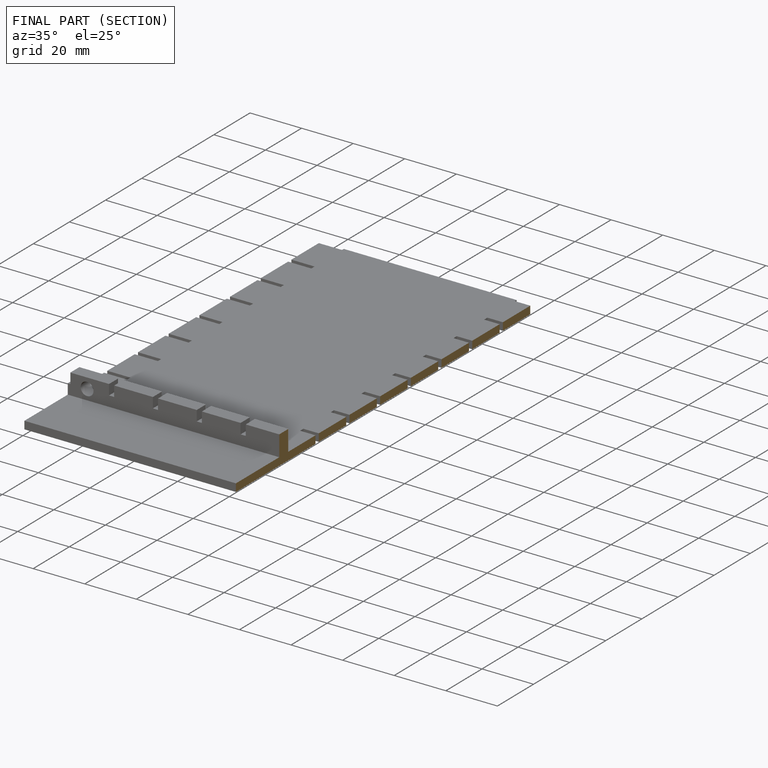
[diagram: finished part — half-section view (interior)]
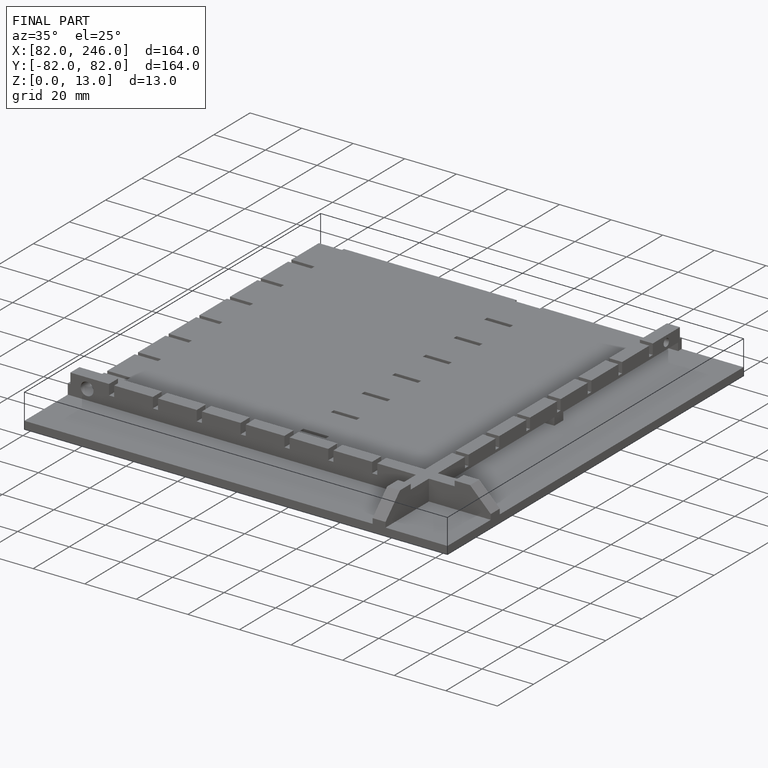
[diagram: finished part — iso view with bounding-box wireframe]
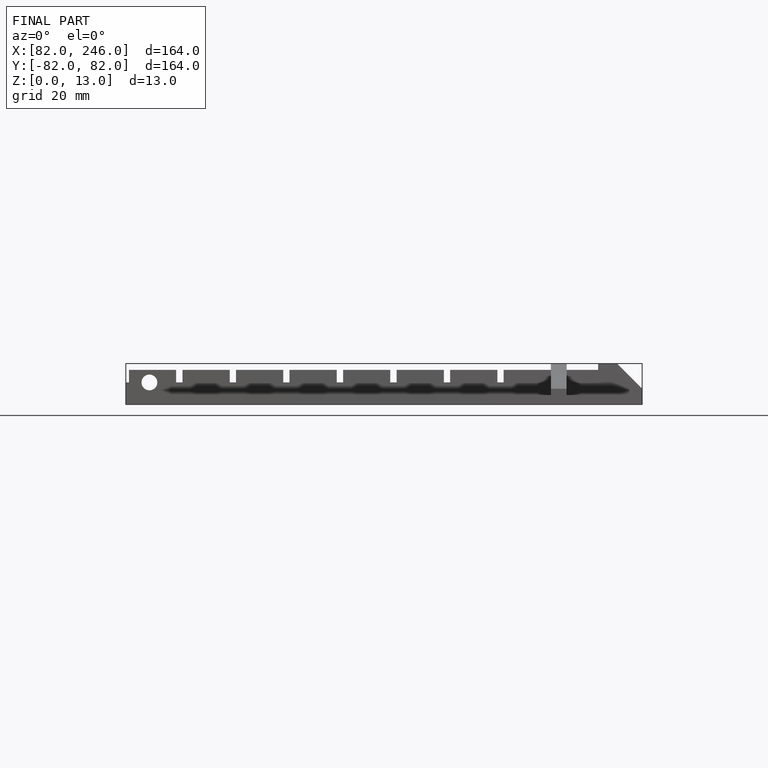
[diagram: finished part — front view with bounding-box wireframe]
